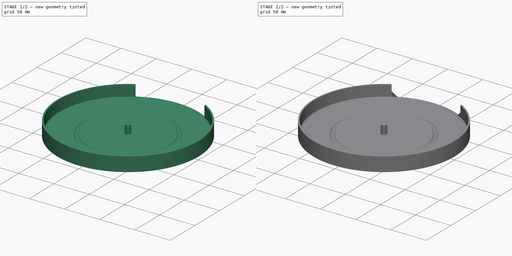
[diagram: build sequence overview — one tinted view per stage of 2, left to right]
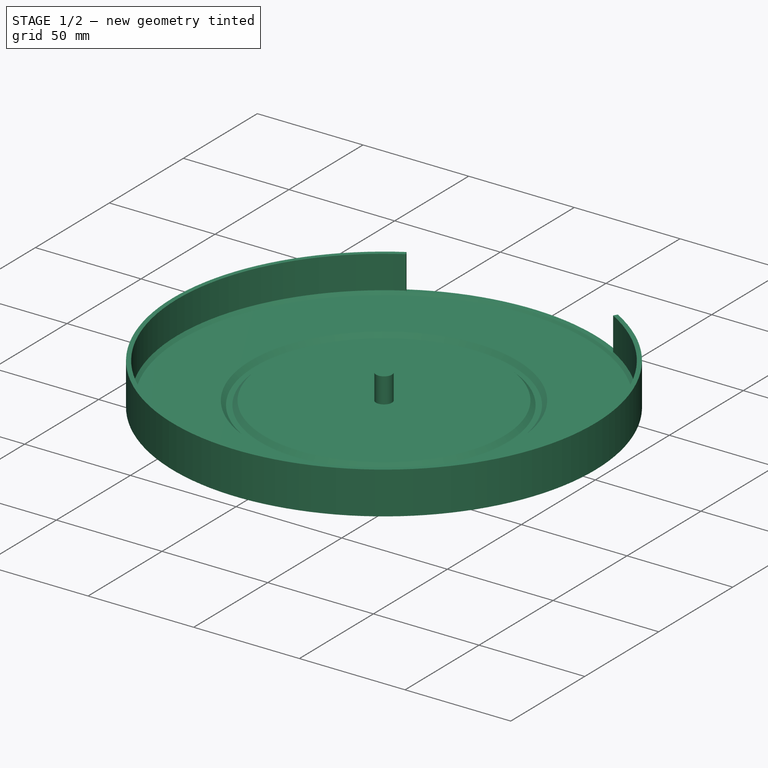
[diagram: stage 1 of 2 — iso view after this stage's code; geometry added in this stage tinted green]
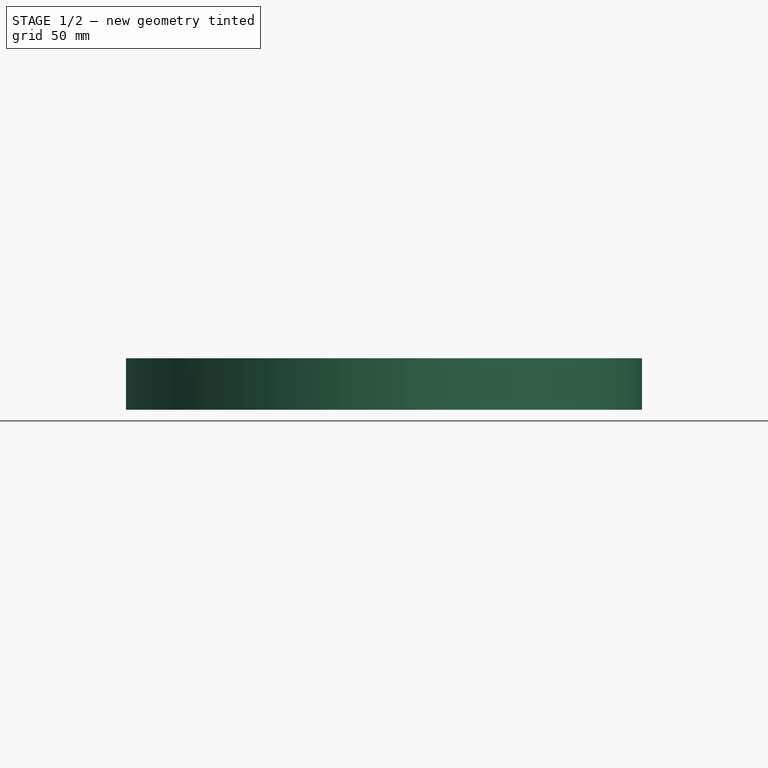
[diagram: stage 1 of 2 — front view after this stage's code; geometry added in this stage tinted green]
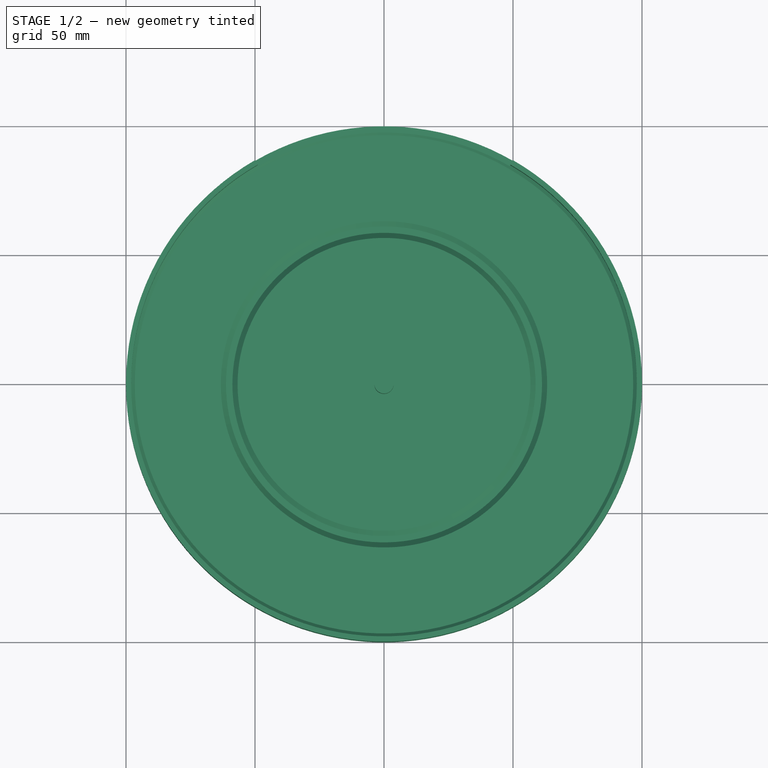
[diagram: stage 1 of 2 — top view after this stage's code; geometry added in this stage tinted green]
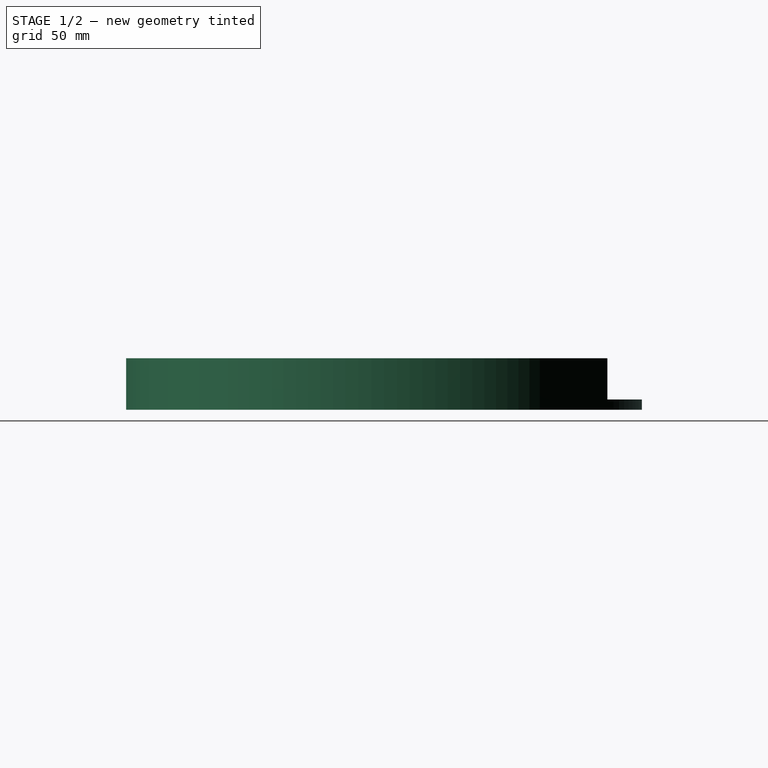
[diagram: stage 1 of 2 — right view after this stage's code; geometry added in this stage tinted green]
FCSTD DOCUMENT  (FreeCAD 0.19R24212 (Git))
Label: base
License: All rights reserved
LicenseURL: http://en.wikipedia.org/wiki/All_rights_reserved
objects: Sketcher::SketchObject×2, PartDesign::Revolution×1, PartDesign::Plane×1, PartDesign::Pocket×1, PartDesign::Chamfer×1, PartDesign::Body×1
note: 10 computed .brp shape members not serialized (recipe doc carries the construction recipe); baked Part::Feature solids carry a one-line shape summary decoded from their .brp

FEATURE [Sketcher::SketchObject] Sketch
  FullyConstrained = true
  MapMode = 5
  Placement = pos=(0,0,0) rot=(1,0,0;1.5708rad)
  Support = -> [XZ_Plane]
  sketch-geometry (16):
    g0: LineSegment StartX=0 StartY=0 StartZ=0 EndX=0 EndY=15 EndZ=0
    g1: LineSegment StartX=0 StartY=15 StartZ=0 EndX=3.75 EndY=15 EndZ=0
    g2: LineSegment StartX=3.75 StartY=15 StartZ=0 EndX=3.75 EndY=3 EndZ=0
    g3: LineSegment StartX=56.7574 StartY=3 StartZ=0 EndX=58.7574 EndY=1 EndZ=0
    g4: LineSegment StartX=58.7574 StartY=1 StartZ=0 EndX=61.2426 EndY=1 EndZ=0
    g5: LineSegment StartX=61.2426 StartY=1 StartZ=0 EndX=63.2426 EndY=3 EndZ=0
    g6: LineSegment StartX=98 StartY=4.41421 StartZ=0 EndX=98 EndY=20 EndZ=0
    g7: LineSegment StartX=98 StartY=20 StartZ=0 EndX=100 EndY=20 EndZ=0
    g8: LineSegment StartX=100 StartY=20 StartZ=0 EndX=100 EndY=0 EndZ=0
    g9: LineSegment StartX=100 StartY=0 StartZ=0 EndX=0 EndY=0 EndZ=0
    g10: LineSegment StartX=56.7574 StartY=3 StartZ=0 EndX=63.2426 EndY=3 EndZ=0
    g11: Circle CenterX=60 CenterY=4 CenterZ=0 NormalX=0 NormalY=0 NormalZ=1 AngleXU=0 Radius=3
    g12: LineSegment StartX=96.5858 StartY=3 StartZ=0 EndX=63.2426 EndY=3 EndZ=0
    g13: LineSegment StartX=63.2426 StartY=3 StartZ=0 EndX=56.7574 EndY=3 EndZ=0
    g14: LineSegment StartX=56.7574 StartY=3 StartZ=0 EndX=3.75 EndY=3 EndZ=0
    g15: LineSegment StartX=96.5858 StartY=3 StartZ=0 EndX=98 EndY=4.41421 EndZ=0
  constraints (45):
    c: Coincident(g-1,g0)
    c: PointOnObject(g0,g-2)
    c: Coincident(g0,g1)
    c: Horizontal(g1)
    c: Coincident(g1,g2)
    c: Vertical(g2)
    c: Coincident(g3,g4)
    c: Coincident(g4,g5)
    c: Vertical(g6)
    c: Coincident(g6,g7)
    c: Horizontal(g7)
    c: Coincident(g7,g8)
    c: Vertical(g8)
    c: Coincident(g8,g9)
    c: Coincident(g9,g0)
    c: Horizontal(g9)
    c: Distance(g7) = 2
    c: Distance(g8) = 20
    c: Coincident(g10,g5)
    c: Horizontal(g10)
    c: Radius(g11) = 3
    c: Distance(g1) = 3.75
    c: Coincident(g10,g3)
    c: Horizontal(g4)
    c: Tangent(g11,g4)
    c: Tangent(g11,g5)
    c: Tangent(g11,g3)
    c: Angle(g10,g5) = 0.785398
    c: Angle(g3,g10) = 0.785398
    c: Coincident(g12,g5)
    c: Horizontal(g12)
    c: Coincident(g12,g13)
    c: Coincident(g13,g3)
    c: Coincident(g13,g14)
    c: Horizontal(g14)
    c: Distance(g11,g13) = 1
    c: DistanceX(g-2,g11) = 60
    c: Distance(g9) = 100
    c: Distance(g0) = 15
    c: Coincident(g15,g12)
    c: Coincident(g15,g6)
    c: Angle(g15,g12) = 2.35619
    c: Distance(g15) = 2
    c: Distance(g12,g9) = 3
    c: Coincident(g2,g14)
FEATURE [PartDesign::Revolution] Revolution
  Angle = 360
  Axis = (0,2e-16,1)
  Base = (0,0,0)
  Placement = pos=(0,0,0) rot=(1,0,0;1.5708rad)
  Profile = -> Sketch
  ReferenceAxis = -> Sketch [V_Axis]
  Reversed = true
FEATURE [PartDesign::Plane] DatumPlane
  AttachmentOffset = pos=(0,0,1) rot=(0,0,1;0rad)
  Length = 60
  MapMode = 5
  Placement = pos=(0,2.7e-15,4) rot=(0,0,1;3.14159rad)
  ResizeMode = 0
  Support = -> [Revolution]
  Width = 60
FEATURE [Sketcher::SketchObject] Sketch001
  FullyConstrained = true
  MapMode = 5
  Placement = pos=(0,2.7e-15,4) rot=(0,0,1;3.14159rad)
  Support = -> [DatumPlane]
  sketch-geometry (6):
    g0: ArcOfCircle CenterX=0 CenterY=0 CenterZ=0 NormalX=0 NormalY=0 NormalZ=1 AngleXU=0 Radius=120 StartAngle=4.18879 EndAngle=5.23599
    g1: ArcOfCircle CenterX=0 CenterY=0 CenterZ=0 NormalX=0 NormalY=0 NormalZ=1 AngleXU=0 Radius=65 StartAngle=4.18879 EndAngle=5.23599
    g2: LineSegment StartX=0 StartY=0 StartZ=0 EndX=-60 EndY=-103.923 EndZ=0
    g3: LineSegment StartX=60 StartY=-103.923 StartZ=0 EndX=0 EndY=0 EndZ=0
    g4: LineSegment StartX=32.5 StartY=-56.2917 StartZ=0 EndX=60 EndY=-103.923 EndZ=0
    g5: LineSegment StartX=-32.5 StartY=-56.2917 StartZ=0 EndX=-60 EndY=-103.923 EndZ=0
  constraints (16):
    c: Coincident(g0,g-1)
    c: Coincident(g1,g0)
    c: Coincident(g2,g0)
    c: Coincident(g2,g0)
    c: Coincident(g3,g0)
    c: Coincident(g3,g0)
    c: Symmetric(g0,g0,g-2)
    c: PointOnObject(g1,g2)
    c: PointOnObject(g1,g3)
    c: Radius(g1) = 65
    c: Radius(g0) = 120
    c: Angle(g2,g3) = 1.0472
    c: Coincident(g4,g1)
    c: Coincident(g4,g0)
    c: Coincident(g5,g1)
    c: Coincident(g5,g0)
FEATURE [PartDesign::Pocket] Pocket
  BaseFeature = -> Revolution
  Length = 20
  Length2 = 100
  Placement = pos=(0,0,0) rot=(1,0,0;1.5708rad)
  Profile = -> Sketch001
  Reversed = true
  Type = 0
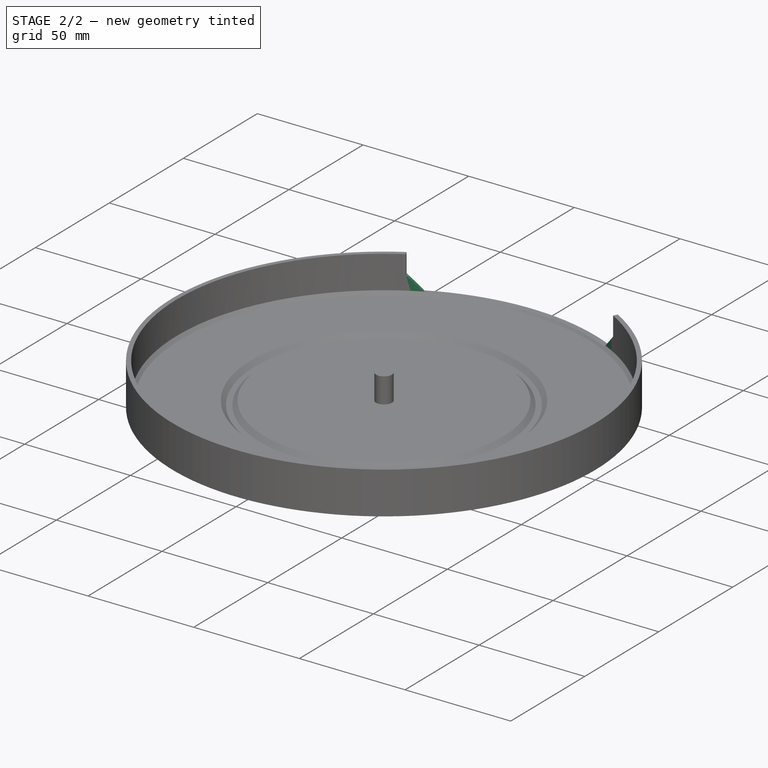
[diagram: stage 2 of 2 — iso view after this stage's code; geometry added in this stage tinted green]
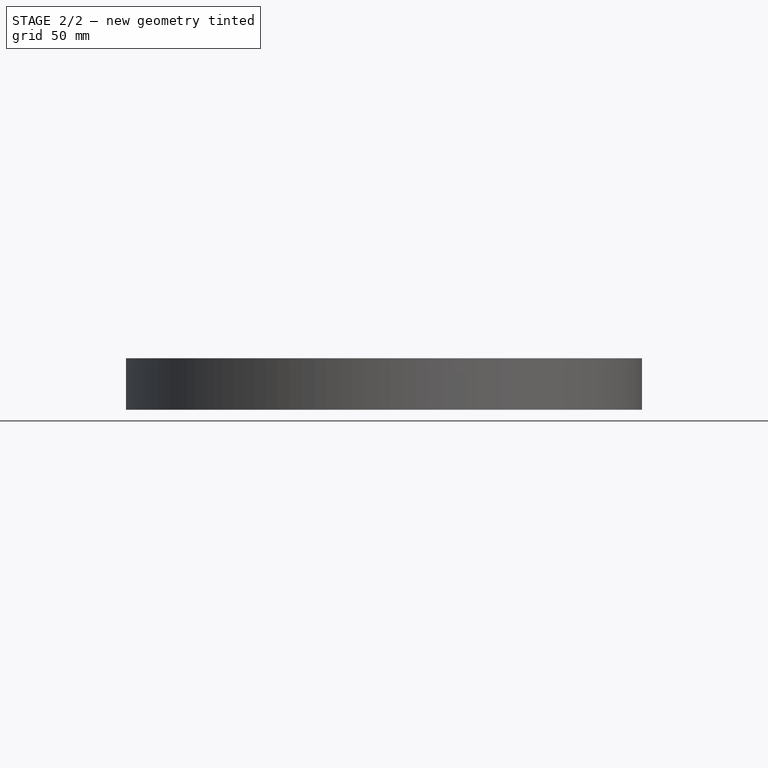
[diagram: stage 2 of 2 — front view after this stage's code; geometry added in this stage tinted green]
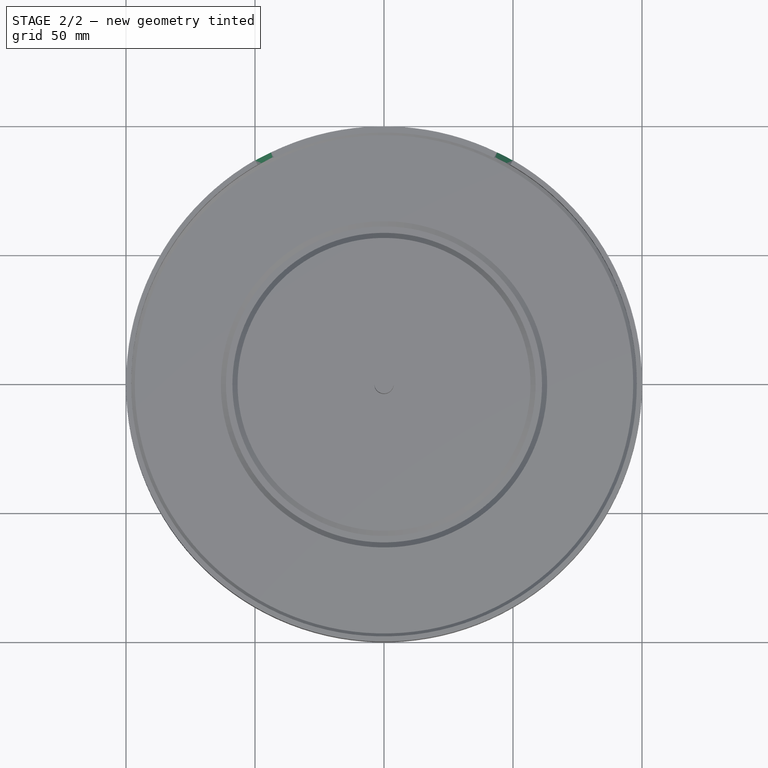
[diagram: stage 2 of 2 — top view after this stage's code; geometry added in this stage tinted green]
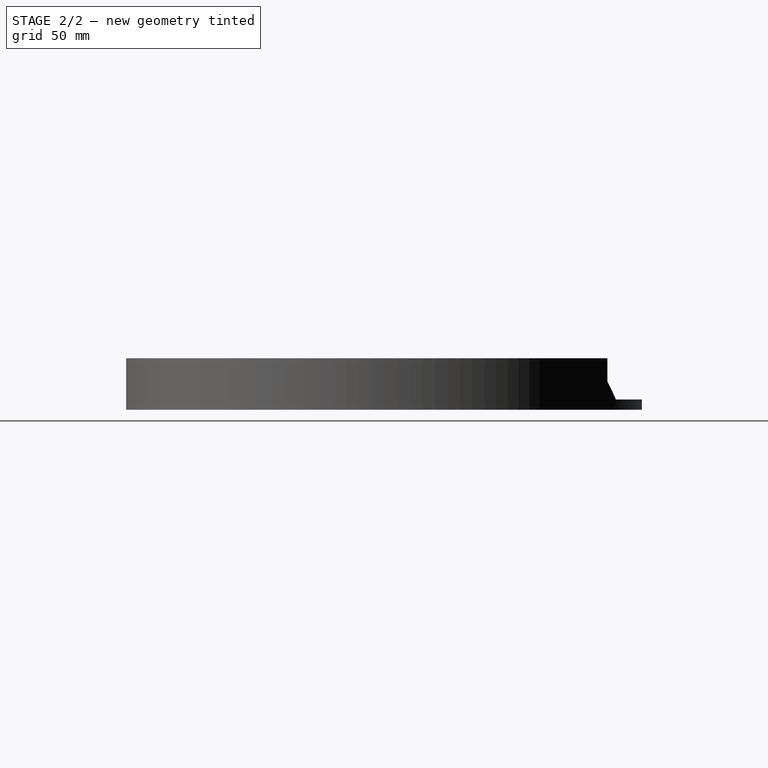
[diagram: stage 2 of 2 — right view after this stage's code; geometry added in this stage tinted green]
FEATURE [PartDesign::Chamfer] Chamfer
  Angle = 45
  Base = -> Pocket [Edge11,Edge15]
  BaseFeature = -> Pocket
  ChamferType = 0
  FlipDirection = false
  Placement = pos=(0,0,0) rot=(1,0,0;1.5708rad)
  Size = 7
  Size2 = 1
  SupportTransform = false
FEATURE [PartDesign::Body] Body
  Group = -> [Sketch,Revolution,DatumPlane,Sketch001,Pocket,Chamfer]
  Origin = -> Origin
  Tip = -> Chamfer
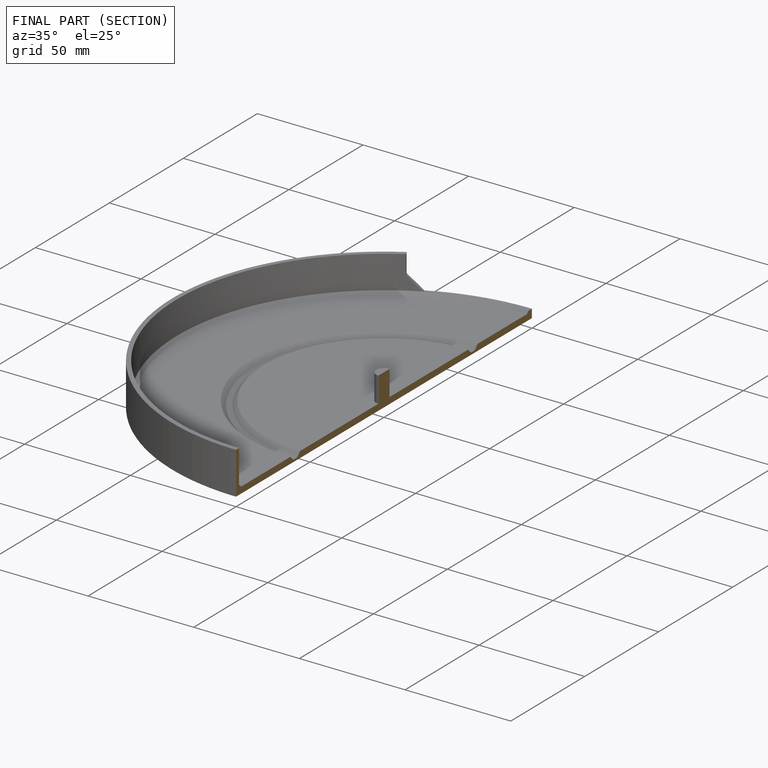
[diagram: finished part — half-section view (interior)]
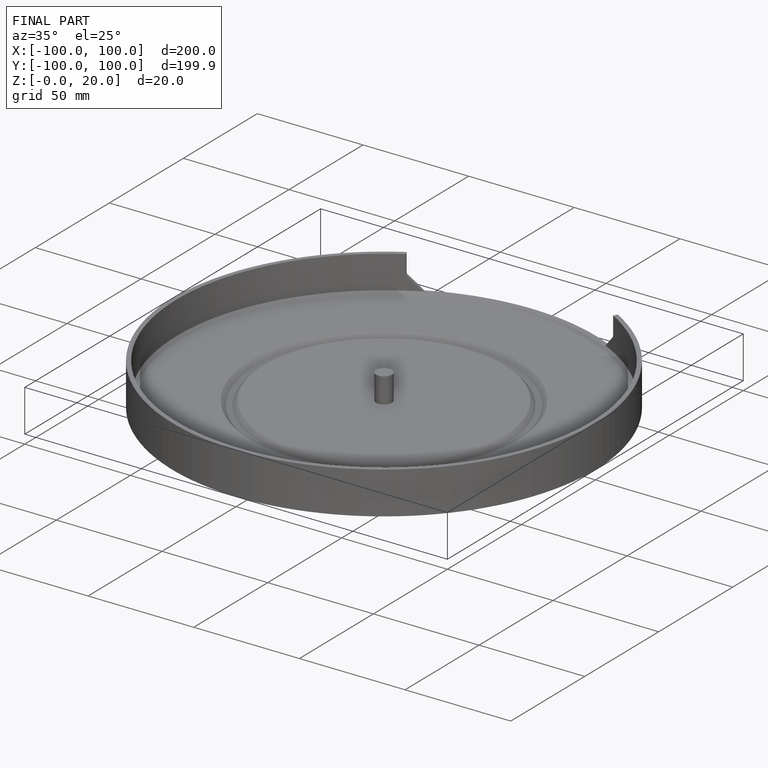
[diagram: finished part — iso view with bounding-box wireframe]
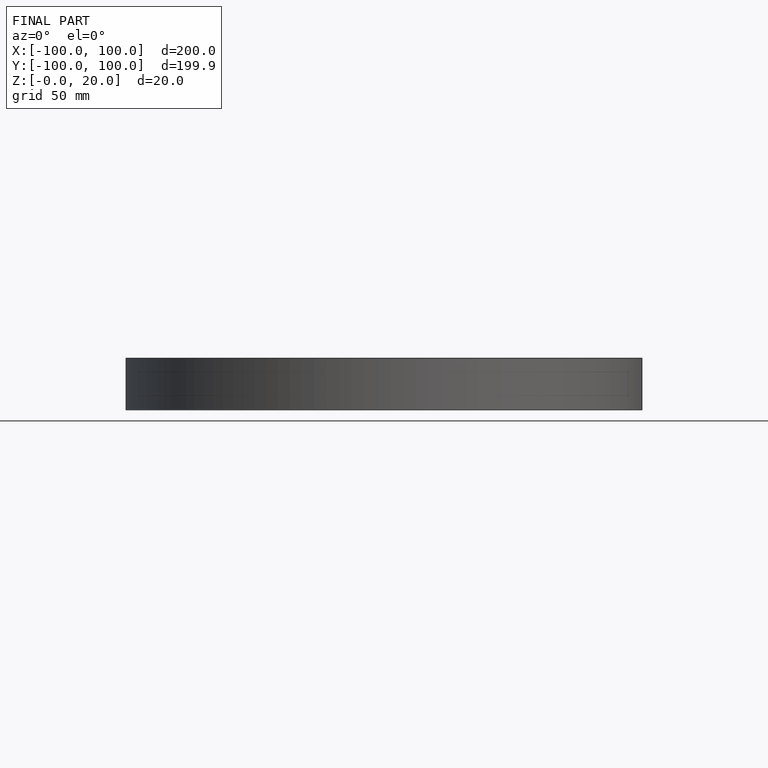
[diagram: finished part — front view with bounding-box wireframe]
